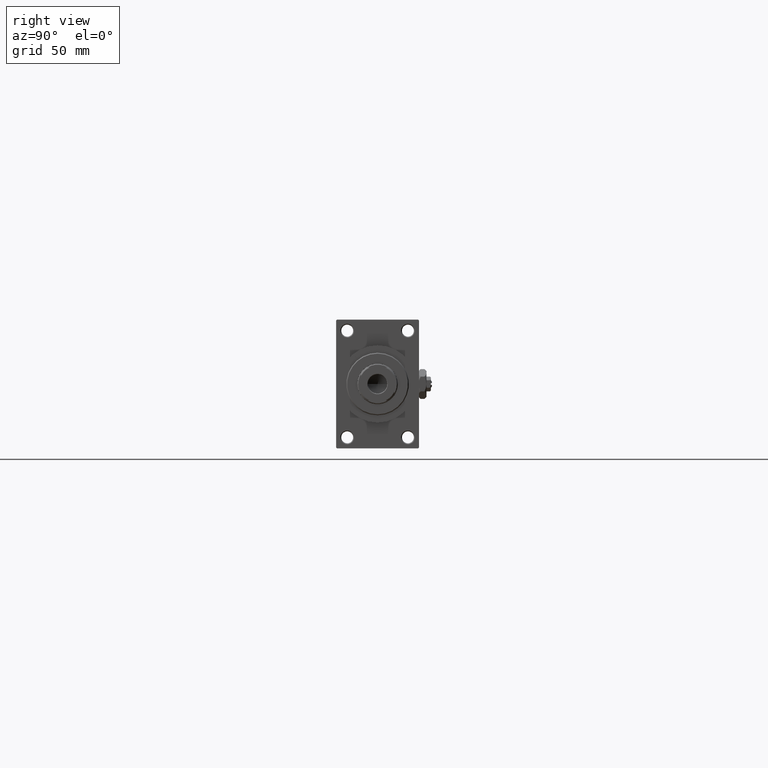
[diagram: clean part render]
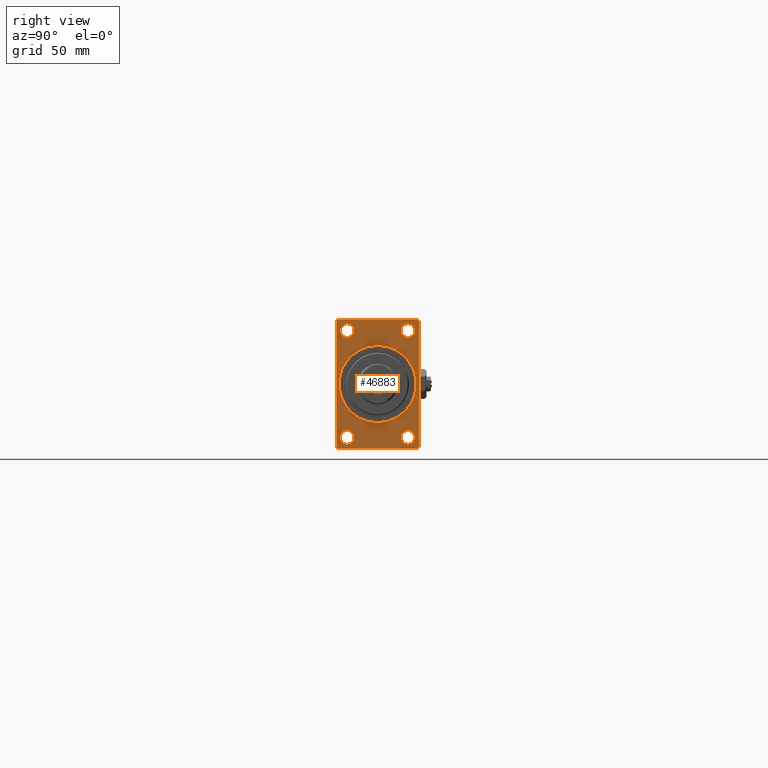
[diagram: same view with one face highlighted and labeled with its STEP entity id]
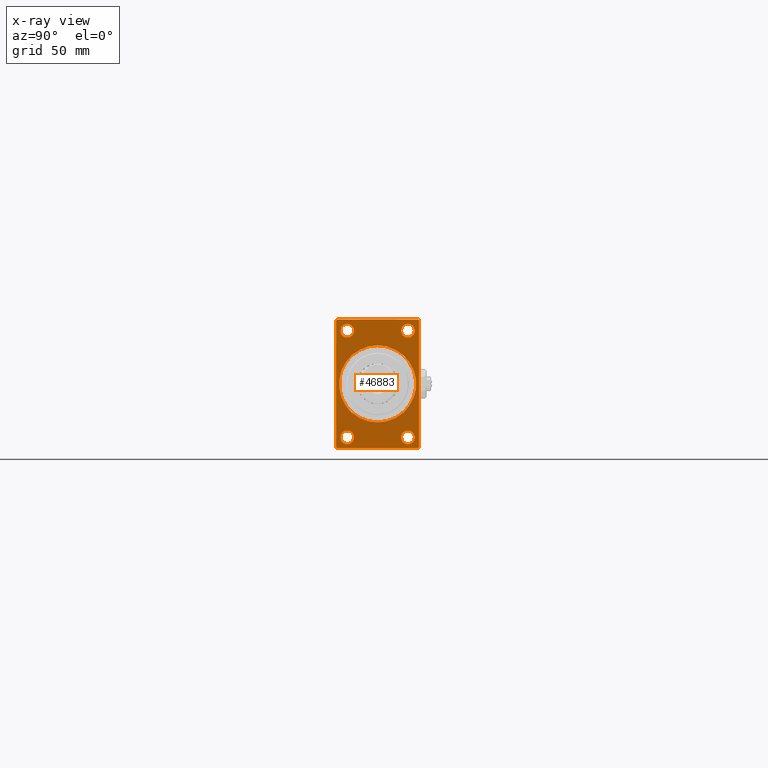
[diagram: x-ray of the same camera — body ghosted, the highlighted face saturated]
A machine part, right view. The second image highlights one B-rep face of the part: STEP entity #46883.
The next image is the same camera in x-ray: the body ghosted, the highlighted face saturated — about 0% of this face is hidden behind the body in this view.
In plain terms, the highlighted planar face has unit normal (-1, 0, 0).
Its self-contained STEP definition (entity closure, byte-faithful):
#225 = VECTOR ( 'NONE', #932, 1000.000000000000000 ) ;
#370 = ORIENTED_EDGE ( 'NONE', *, *, #21544, .T. ) ;
#430 = DIRECTION ( 'NONE',  ( -1.000000000000000000, -0.000000000000000000, -0.000000000000000000 ) ) ;
#751 = CARTESIAN_POINT ( 'NONE',  ( 343.0000000000000000, 22.49999999999999645, 35.00000000000000000 ) ) ;
#932 = DIRECTION ( 'NONE',  ( 0.000000000000000000, 0.000000000000000000, -1.000000000000000000 ) ) ;
#990 = CARTESIAN_POINT ( 'NONE',  ( 343.0000000000000000, 21.99999999999999645, 35.00000000000000000 ) ) ;
#1240 = LINE ( 'NONE', #990, #15138 ) ;
#1397 = CARTESIAN_POINT ( 'NONE',  ( 343.0000000000000000, 16.50000000000000000, -25.24999999999996447 ) ) ;
#1799 = VERTEX_POINT ( 'NONE', #27642 ) ;
#1806 = CARTESIAN_POINT ( 'NONE',  ( 343.0000000000000000, -22.50000000000000355, -34.50000000000000000 ) ) ;
#1817 = VERTEX_POINT ( 'NONE', #28368 ) ;
#2206 = CARTESIAN_POINT ( 'NONE',  ( 343.0000000000000000, -16.50000000000000000, 29.00000000000000711 ) ) ;
#2666 = VECTOR ( 'NONE', #21489, 1000.000000000000114 ) ;
#3133 = DIRECTION ( 'NONE',  ( 0.000000000000000000, 0.000000000000000000, -1.000000000000000000 ) ) ;
#3474 = VECTOR ( 'NONE', #35292, 1000.000000000000000 ) ;
#3644 = EDGE_CURVE ( 'NONE', #43764, #22309, #34803, .T. ) ;
#5214 = VECTOR ( 'NONE', #29956, 1000.000000000000114 ) ;
#5822 = ORIENTED_EDGE ( 'NONE', *, *, #31537, .T. ) ;
#6176 = DIRECTION ( 'NONE',  ( 0.000000000000000000, 0.000000000000000000, 1.000000000000000000 ) ) ;
#6246 = DIRECTION ( 'NONE',  ( 0.000000000000000000, -1.000000000000000000, 0.000000000000000000 ) ) ;
#6305 = ORIENTED_EDGE ( 'NONE', *, *, #37040, .T. ) ;
#6332 = DIRECTION ( 'NONE',  ( -1.000000000000000000, -0.000000000000000000, -0.000000000000000000 ) ) ;
#6433 = CARTESIAN_POINT ( 'NONE',  ( 343.0000000000000000, -21.99999999999998934, -35.00000000000000000 ) ) ;
#6552 = CARTESIAN_POINT ( 'NONE',  ( 343.0000000000000000, 22.49999999999999645, -34.49999999999995026 ) ) ;
#6632 = VECTOR ( 'NONE', #8681, 1000.000000000000000 ) ;
#6716 = ORIENTED_EDGE ( 'NONE', *, *, #3644, .T. ) ;
#7940 = VERTEX_POINT ( 'NONE', #8483 ) ;
#8033 = CARTESIAN_POINT ( 'NONE',  ( 343.0000000000000000, 0.000000000000000000, 21.00000000000000000 ) ) ;
#8159 = AXIS2_PLACEMENT_3D ( 'NONE', #24252, #6332, #16797 ) ;
#8483 = CARTESIAN_POINT ( 'NONE',  ( 343.0000000000000000, -16.50000000000000000, 32.75000000000003553 ) ) ;
#8681 = DIRECTION ( 'NONE',  ( 0.000000000000000000, 0.000000000000000000, -1.000000000000000000 ) ) ;
#8696 = EDGE_CURVE ( 'NONE', #37686, #48986, #44579, .T. ) ;
#8749 = CIRCLE ( 'NONE', #36532, 3.750000000000027534 ) ;
#9524 = CARTESIAN_POINT ( 'NONE',  ( 343.0000000000000000, -16.50000000000000000, -25.24999999999996447 ) ) ;
#9894 = CARTESIAN_POINT ( 'NONE',  ( 343.0000000000000000, 16.50000000000000000, -32.75000000000002842 ) ) ;
#10283 = DIRECTION ( 'NONE',  ( 0.000000000000000000, 0.000000000000000000, 1.000000000000000000 ) ) ;
#10312 = ORIENTED_EDGE ( 'NONE', *, *, #45638, .F. ) ;
#10528 = EDGE_CURVE ( 'NONE', #27197, #12889, #11660, .T. ) ;
#10730 = VERTEX_POINT ( 'NONE', #48027 ) ;
#10778 = LINE ( 'NONE', #6552, #2666 ) ;
#11208 = LINE ( 'NONE', #13957, #26011 ) ;
#11356 = ORIENTED_EDGE ( 'NONE', *, *, #38156, .T. ) ;
#11431 = CARTESIAN_POINT ( 'NONE',  ( 343.0000000000000000, 0.000000000000000000, 0.000000000000000000 ) ) ;
#11660 = CIRCLE ( 'NONE', #21221, 21.00000000000000000 ) ;
#11813 = AXIS2_PLACEMENT_3D ( 'NONE', #17385, #45338, #6176 ) ;
#11907 = AXIS2_PLACEMENT_3D ( 'NONE', #38446, #430, #26774 ) ;
#11931 = CARTESIAN_POINT ( 'NONE',  ( 343.0000000000000000, -16.50000000000000000, -32.75000000000002842 ) ) ;
#12889 = VERTEX_POINT ( 'NONE', #24348 ) ;
#13061 = EDGE_LOOP ( 'NONE', ( #370, #40330 ) ) ;
#13304 = ORIENTED_EDGE ( 'NONE', *, *, #29784, .T. ) ;
#13957 = CARTESIAN_POINT ( 'NONE',  ( 343.0000000000000000, 22.49999999999999645, -35.00000000000000000 ) ) ;
#15138 = VECTOR ( 'NONE', #27835, 1000.000000000000114 ) ;
#15441 = VERTEX_POINT ( 'NONE', #9524 ) ;
#16562 = EDGE_LOOP ( 'NONE', ( #13304, #5822 ) ) ;
#16571 = CIRCLE ( 'NONE', #11813, 3.750000000000027534 ) ;
#16715 = EDGE_CURVE ( 'NONE', #12889, #27197, #43497, .T. ) ;
#16797 = DIRECTION ( 'NONE',  ( 0.000000000000000000, 0.000000000000000000, 1.000000000000000000 ) ) ;
#17094 = FACE_BOUND ( 'NONE', #36876, .T. ) ;
#17385 = CARTESIAN_POINT ( 'NONE',  ( 343.0000000000000000, -16.50000000000000000, 29.00000000000000711 ) ) ;
#18377 = VERTEX_POINT ( 'NONE', #46566 ) ;
#18738 = ORIENTED_EDGE ( 'NONE', *, *, #36630, .T. ) ;
#18817 = ORIENTED_EDGE ( 'NONE', *, *, #22353, .T. ) ;
#19218 = AXIS2_PLACEMENT_3D ( 'NONE', #31060, #46186, #27329 ) ;
#19837 = LINE ( 'NONE', #23062, #225 ) ;
#19929 = VERTEX_POINT ( 'NONE', #9894 ) ;
#20831 = FACE_BOUND ( 'NONE', #16562, .T. ) ;
#21075 = DIRECTION ( 'NONE',  ( -1.000000000000000000, 0.000000000000000000, -0.000000000000000000 ) ) ;
#21209 = EDGE_CURVE ( 'NONE', #7940, #24748, #8749, .T. ) ;
#21221 = AXIS2_PLACEMENT_3D ( 'NONE', #22278, #26974, #3133 ) ;
#21489 = DIRECTION ( 'NONE',  ( -0.000000000000000000, 0.7071067811865474617, 0.7071067811865474617 ) ) ;
#21544 = EDGE_CURVE ( 'NONE', #41183, #15441, #26986, .T. ) ;
#21867 = CARTESIAN_POINT ( 'NONE',  ( 343.0000000000000000, -16.50000000000000000, -28.99999999999999289 ) ) ;
#22100 = AXIS2_PLACEMENT_3D ( 'NONE', #11431, #22872, #45946 ) ;
#22278 = CARTESIAN_POINT ( 'NONE',  ( 343.0000000000000000, 0.000000000000000000, 0.000000000000000000 ) ) ;
#22309 = VERTEX_POINT ( 'NONE', #22395 ) ;
#22353 = EDGE_CURVE ( 'NONE', #18377, #43764, #1240, .T. ) ;
#22395 = CARTESIAN_POINT ( 'NONE',  ( 343.0000000000000000, -21.99999999999993250, 35.00000000000000000 ) ) ;
#22753 = CARTESIAN_POINT ( 'NONE',  ( 343.0000000000000000, -22.50000000000000355, 34.49999999999995026 ) ) ;
#22863 = ORIENTED_EDGE ( 'NONE', *, *, #10528, .F. ) ;
#22872 = DIRECTION ( 'NONE',  ( 1.000000000000000000, 0.000000000000000000, 0.000000000000000000 ) ) ;
#23062 = CARTESIAN_POINT ( 'NONE',  ( 343.0000000000000000, 22.49999999999999645, 35.00000000000000000 ) ) ;
#23265 = DIRECTION ( 'NONE',  ( 0.000000000000000000, 0.000000000000000000, 1.000000000000000000 ) ) ;
#24053 = FACE_BOUND ( 'NONE', #13061, .T. ) ;
#24243 = CARTESIAN_POINT ( 'NONE',  ( 343.0000000000000000, 16.50000000000000000, 29.00000000000000355 ) ) ;
#24252 = CARTESIAN_POINT ( 'NONE',  ( 343.0000000000000000, 16.50000000000000000, -28.99999999999999289 ) ) ;
#24329 = LINE ( 'NONE', #39739, #6632 ) ;
#24348 = CARTESIAN_POINT ( 'NONE',  ( 343.0000000000000000, 2.571758278209441661E-15, -21.00000000000000000 ) ) ;
#24451 = VERTEX_POINT ( 'NONE', #44695 ) ;
#24748 = VERTEX_POINT ( 'NONE', #33236 ) ;
#25730 = ORIENTED_EDGE ( 'NONE', *, *, #30086, .F. ) ;
#26011 = VECTOR ( 'NONE', #6246, 1000.000000000000000 ) ;
#26543 = AXIS2_PLACEMENT_3D ( 'NONE', #24243, #46346, #23265 ) ;
#26774 = DIRECTION ( 'NONE',  ( 0.000000000000000000, 0.000000000000000000, 1.000000000000000000 ) ) ;
#26974 = DIRECTION ( 'NONE',  ( 1.000000000000000000, 0.000000000000000000, 0.000000000000000000 ) ) ;
#26986 = CIRCLE ( 'NONE', #11907, 3.750000000000034639 ) ;
#27197 = VERTEX_POINT ( 'NONE', #8033 ) ;
#27329 = DIRECTION ( 'NONE',  ( 0.000000000000000000, 0.000000000000000000, 1.000000000000000000 ) ) ;
#27642 = CARTESIAN_POINT ( 'NONE',  ( 343.0000000000000000, 22.49999999999999645, -34.49999999999995026 ) ) ;
#27835 = DIRECTION ( 'NONE',  ( 0.000000000000000000, -0.7071067811865474617, 0.7071067811865474617 ) ) ;
#28280 = DIRECTION ( 'NONE',  ( -0.000000000000000000, 0.000000000000000000, 1.000000000000000000 ) ) ;
#28368 = CARTESIAN_POINT ( 'NONE',  ( 343.0000000000000000, 21.99999999999993960, -35.00000000000000000 ) ) ;
#29784 = EDGE_CURVE ( 'NONE', #19929, #31423, #30352, .T. ) ;
#29956 = DIRECTION ( 'NONE',  ( -0.000000000000000000, -0.7071067811865474617, -0.7071067811865474617 ) ) ;
#30086 = EDGE_CURVE ( 'NONE', #18377, #1799, #19837, .T. ) ;
#30352 = CIRCLE ( 'NONE', #19218, 3.750000000000034639 ) ;
#30632 = DIRECTION ( 'NONE',  ( -1.000000000000000000, -0.000000000000000000, -0.000000000000000000 ) ) ;
#31060 = CARTESIAN_POINT ( 'NONE',  ( 343.0000000000000000, 16.50000000000000000, -28.99999999999999289 ) ) ;
#31267 = AXIS2_PLACEMENT_3D ( 'NONE', #44804, #37382, #10283 ) ;
#31423 = VERTEX_POINT ( 'NONE', #1397 ) ;
#31435 = VECTOR ( 'NONE', #33431, 1000.000000000000114 ) ;
#31537 = EDGE_CURVE ( 'NONE', #31423, #19929, #31986, .T. ) ;
#31966 = ORIENTED_EDGE ( 'NONE', *, *, #40410, .T. ) ;
#31986 = CIRCLE ( 'NONE', #8159, 3.750000000000034639 ) ;
#32506 = FACE_BOUND ( 'NONE', #38619, .T. ) ;
#33172 = AXIS2_PLACEMENT_3D ( 'NONE', #46642, #21075, #28280 ) ;
#33236 = CARTESIAN_POINT ( 'NONE',  ( 343.0000000000000000, -16.50000000000000000, 25.24999999999998224 ) ) ;
#33416 = CARTESIAN_POINT ( 'NONE',  ( 343.0000000000000000, 21.99999999999999645, 35.00000000000000000 ) ) ;
#33431 = DIRECTION ( 'NONE',  ( 0.000000000000000000, 0.7071067811865474617, -0.7071067811865474617 ) ) ;
#33466 = CARTESIAN_POINT ( 'NONE',  ( 343.0000000000000000, 16.50000000000000000, 32.75000000000003553 ) ) ;
#34039 = DIRECTION ( 'NONE',  ( -1.000000000000000000, -0.000000000000000000, -0.000000000000000000 ) ) ;
#34803 = LINE ( 'NONE', #751, #3474 ) ;
#35252 = FACE_BOUND ( 'NONE', #47228, .T. ) ;
#35292 = DIRECTION ( 'NONE',  ( 0.000000000000000000, -1.000000000000000000, 0.000000000000000000 ) ) ;
#36532 = AXIS2_PLACEMENT_3D ( 'NONE', #2206, #30632, #43682 ) ;
#36630 = EDGE_CURVE ( 'NONE', #1817, #1799, #10778, .T. ) ;
#36707 = EDGE_CURVE ( 'NONE', #37151, #24451, #39209, .T. ) ;
#36772 = DIRECTION ( 'NONE',  ( 0.000000000000000000, 0.000000000000000000, 1.000000000000000000 ) ) ;
#36876 = EDGE_LOOP ( 'NONE', ( #22863, #44231 ) ) ;
#37040 = EDGE_CURVE ( 'NONE', #10730, #37686, #24329, .T. ) ;
#37151 = VERTEX_POINT ( 'NONE', #33466 ) ;
#37382 = DIRECTION ( 'NONE',  ( -1.000000000000000000, -0.000000000000000000, -0.000000000000000000 ) ) ;
#37404 = CARTESIAN_POINT ( 'NONE',  ( 343.0000000000000000, -22.00000000000000355, -35.00000000000000000 ) ) ;
#37686 = VERTEX_POINT ( 'NONE', #1806 ) ;
#38156 = EDGE_CURVE ( 'NONE', #24451, #37151, #41615, .T. ) ;
#38446 = CARTESIAN_POINT ( 'NONE',  ( 343.0000000000000000, -16.50000000000000000, -28.99999999999999289 ) ) ;
#38619 = EDGE_LOOP ( 'NONE', ( #11356, #49080 ) ) ;
#39209 = CIRCLE ( 'NONE', #31267, 3.750000000000031086 ) ;
#39739 = CARTESIAN_POINT ( 'NONE',  ( 343.0000000000000000, -22.50000000000000355, 35.00000000000000000 ) ) ;
#40330 = ORIENTED_EDGE ( 'NONE', *, *, #47718, .T. ) ;
#40375 = AXIS2_PLACEMENT_3D ( 'NONE', #21867, #34039, #36772 ) ;
#40410 = EDGE_CURVE ( 'NONE', #22309, #10730, #49066, .T. ) ;
#41183 = VERTEX_POINT ( 'NONE', #11931 ) ;
#41366 = ORIENTED_EDGE ( 'NONE', *, *, #8696, .T. ) ;
#41615 = CIRCLE ( 'NONE', #26543, 3.750000000000031086 ) ;
#41958 = CIRCLE ( 'NONE', #40375, 3.750000000000034639 ) ;
#43497 = CIRCLE ( 'NONE', #22100, 21.00000000000000000 ) ;
#43682 = DIRECTION ( 'NONE',  ( 0.000000000000000000, 0.000000000000000000, 1.000000000000000000 ) ) ;
#43764 = VERTEX_POINT ( 'NONE', #33416 ) ;
#44231 = ORIENTED_EDGE ( 'NONE', *, *, #16715, .F. ) ;
#44579 = LINE ( 'NONE', #37404, #31435 ) ;
#44695 = CARTESIAN_POINT ( 'NONE',  ( 343.0000000000000000, 16.50000000000000000, 25.24999999999997513 ) ) ;
#44804 = CARTESIAN_POINT ( 'NONE',  ( 343.0000000000000000, 16.50000000000000000, 29.00000000000000355 ) ) ;
#45338 = DIRECTION ( 'NONE',  ( -1.000000000000000000, -0.000000000000000000, -0.000000000000000000 ) ) ;
#45638 = EDGE_CURVE ( 'NONE', #1817, #48986, #11208, .T. ) ;
#45946 = DIRECTION ( 'NONE',  ( 0.000000000000000000, 0.000000000000000000, -1.000000000000000000 ) ) ;
#46186 = DIRECTION ( 'NONE',  ( -1.000000000000000000, -0.000000000000000000, -0.000000000000000000 ) ) ;
#46346 = DIRECTION ( 'NONE',  ( -1.000000000000000000, -0.000000000000000000, -0.000000000000000000 ) ) ;
#46403 = ORIENTED_EDGE ( 'NONE', *, *, #21209, .T. ) ;
#46566 = CARTESIAN_POINT ( 'NONE',  ( 343.0000000000000000, 22.49999999999999645, 34.50000000000000000 ) ) ;
#46642 = CARTESIAN_POINT ( 'NONE',  ( 343.0000000000000000, 0.000000000000000000, 0.000000000000000000 ) ) ;
#46883 = ADVANCED_FACE ( 'NONE', ( #35252, #24053, #20831, #32506, #17094, #47618 ), #46886, .F. ) ;
#46886 = PLANE ( 'NONE',  #33172 ) ;
#46969 = ORIENTED_EDGE ( 'NONE', *, *, #48323, .T. ) ;
#47228 = EDGE_LOOP ( 'NONE', ( #46969, #46403 ) ) ;
#47618 = FACE_OUTER_BOUND ( 'NONE', #48849, .T. ) ;
#47718 = EDGE_CURVE ( 'NONE', #15441, #41183, #41958, .T. ) ;
#48027 = CARTESIAN_POINT ( 'NONE',  ( 343.0000000000000000, -22.50000000000000355, 34.49999999999995026 ) ) ;
#48323 = EDGE_CURVE ( 'NONE', #24748, #7940, #16571, .T. ) ;
#48849 = EDGE_LOOP ( 'NONE', ( #6305, #41366, #10312, #18738, #25730, #18817, #6716, #31966 ) ) ;
#48986 = VERTEX_POINT ( 'NONE', #6433 ) ;
#49066 = LINE ( 'NONE', #22753, #5214 ) ;
#49080 = ORIENTED_EDGE ( 'NONE', *, *, #36707, .T. ) ;